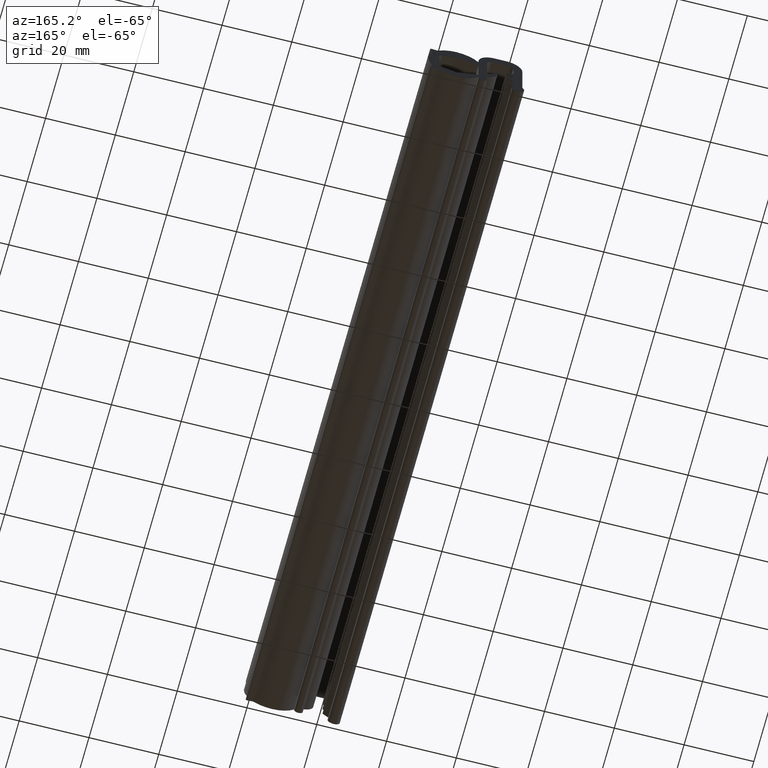
[diagram: clean part render]
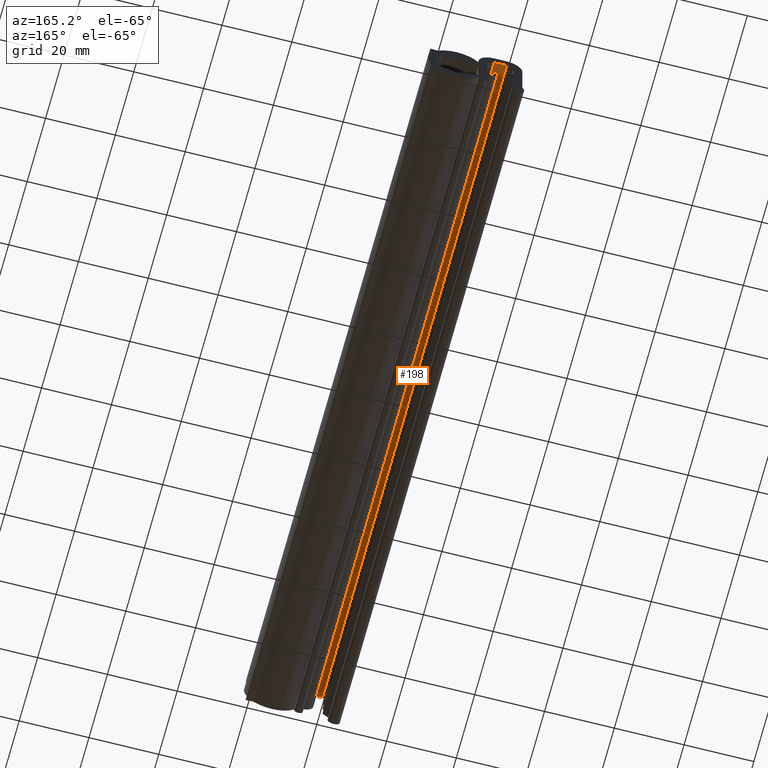
[diagram: same view with one face highlighted and labeled with its STEP entity id]
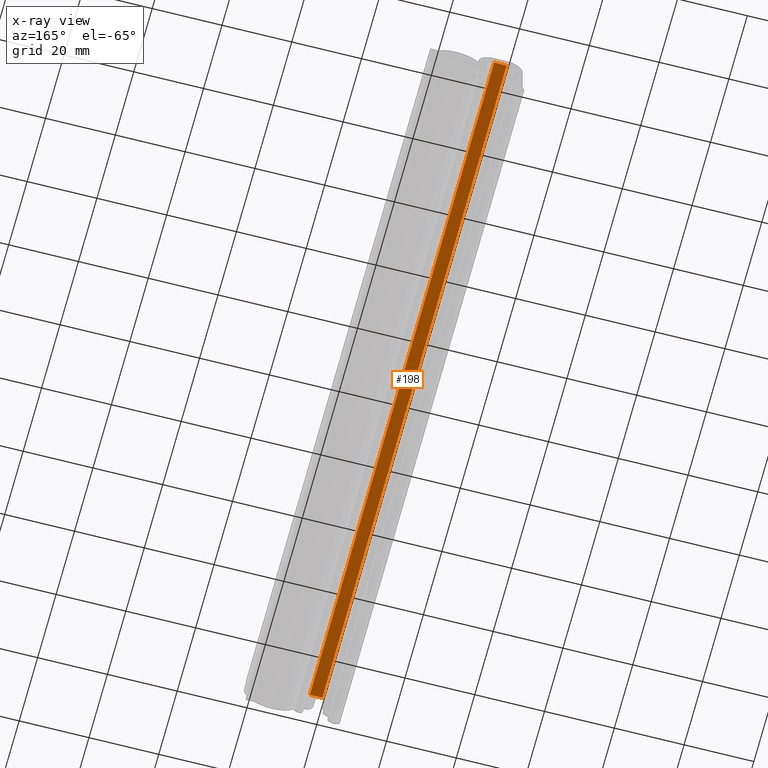
[diagram: x-ray of the same camera — body ghosted, the highlighted face saturated]
A machine part, auxiliary view. The second image highlights one B-rep face of the part: STEP entity #198.
The next image is the same camera in x-ray: the body ghosted, the highlighted face saturated — about 0% of this face is hidden behind the body in this view.
In plain terms, the highlighted planar face has unit normal (0, 0, -1).
Its self-contained STEP definition (entity closure, byte-faithful):
#198=ADVANCED_FACE('',(#733),#732,.T.);
#732=PLANE('',#1402);
#733=FACE_OUTER_BOUND('',#1403,.T.);
#1399=CARTESIAN_POINT('',(2.36000000000E+00,-1.00000000000E+01,1.52677669530E+01));
#1400=DIRECTION('',(0.00000000000E+00,0.00000000000E+00,-1.00000000000E+00));
#1401=DIRECTION('',(-1.00000000000E+00,0.00000000000E+00,0.00000000000E+00));
#1402=AXIS2_PLACEMENT_3D('',#1399,#1400,#1401);
#1403=EDGE_LOOP('',(#1935,#1936,#1937,#1938));
#1935=ORIENTED_EDGE('',*,*,#2281,.F.);
#1936=ORIENTED_EDGE('',*,*,#2313,.F.);
#1937=ORIENTED_EDGE('',*,*,#2233,.T.);
#1938=ORIENTED_EDGE('',*,*,#2312,.T.);
#2233=EDGE_CURVE('',#3140,#3133,#3141,.T.);
#2281=EDGE_CURVE('',#3467,#3474,#3475,.T.);
#2312=EDGE_CURVE('',#3133,#3474,#3678,.T.);
#2313=EDGE_CURVE('',#3140,#3467,#3684,.T.);
#3133=VERTEX_POINT('',#4534);
#3140=VERTEX_POINT('',#4539);
#3141=LINE('',#4540,#4541);
#3467=VERTEX_POINT('',#4745);
#3474=VERTEX_POINT('',#4750);
#3475=LINE('',#4751,#4752);
#3678=LINE('',#4871,#4872);
#3684=LINE('',#4874,#4875);
#4534=CARTESIAN_POINT('',(2.00000000000E+00,2.00000000000E+02,1.52677669530E+01));
#4539=CARTESIAN_POINT('',(-1.60000000000E+00,2.00000000000E+02,1.52677669530E+01));
#4540=CARTESIAN_POINT('',(-1.60000000000E+00,2.00000000000E+02,1.52677669530E+01));
#4541=VECTOR('',#4542,3.60000000000E+00);
#4542=DIRECTION('',(1.00000000000E+00,0.00000000000E+00,0.00000000000E+00));
#4745=CARTESIAN_POINT('',(-1.60000000000E+00,0.00000000000E+00,1.52677669530E+01));
#4750=CARTESIAN_POINT('',(2.00000000000E+00,0.00000000000E+00,1.52677669530E+01));
#4751=CARTESIAN_POINT('',(-1.60000000000E+00,0.00000000000E+00,1.52677669530E+01));
#4752=VECTOR('',#4753,3.60000000000E+00);
#4753=DIRECTION('',(1.00000000000E+00,0.00000000000E+00,0.00000000000E+00));
#4871=CARTESIAN_POINT('',(2.00000000000E+00,2.00000000000E+02,1.52677669530E+01));
#4872=VECTOR('',#4873,2.00000000000E+02);
#4873=DIRECTION('',(0.00000000000E+00,-1.00000000000E+00,0.00000000000E+00));
#4874=CARTESIAN_POINT('',(-1.60000000000E+00,2.00000000000E+02,1.52677669530E+01));
#4875=VECTOR('',#4876,2.00000000000E+02);
#4876=DIRECTION('',(0.00000000000E+00,-1.00000000000E+00,0.00000000000E+00));